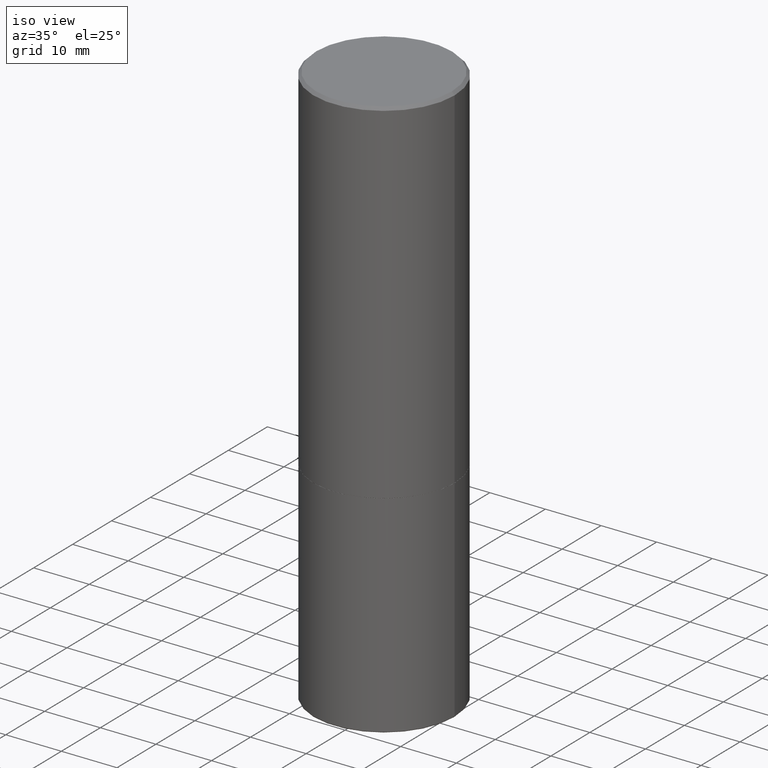
[diagram: clean part render]
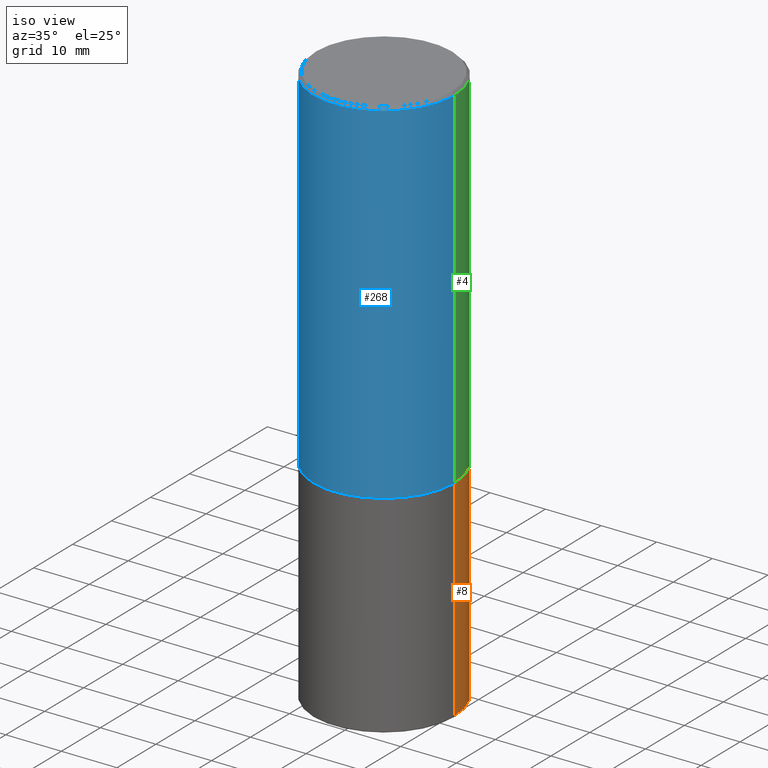
[diagram: same view with three faces highlighted in distinct colors, each labeled with its STEP entity id]
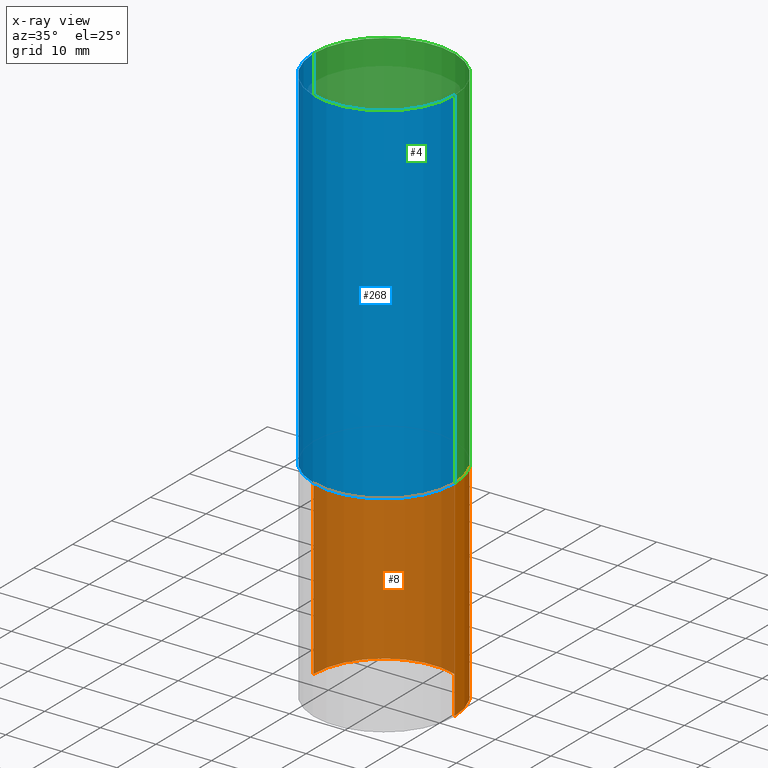
[diagram: x-ray of the same camera — body ghosted, the three highlighted faces saturated]
A machine part, iso view with three faces highlighted in distinct colors.
The next image is the same camera in x-ray (body ghosted, the three faces saturated) — at least one of them is partly hidden behind the body in this view.
Their STEP definitions:

[orange] entity #8 — the highlighted cylindrical surface (partial cylindrical patch) has radius 12.7 mm, axis along (-0, 0, 1).
#8 = ADVANCED_FACE ( 'NONE', ( #122 ), #247, .T. ) ;
#10 = VERTEX_POINT ( 'NONE', #80 ) ;
#18 = DIRECTION ( 'NONE',  ( -2.445468806185136597E-29, 3.491481338843145583E-15, 1.000000000000000000 ) ) ;
#43 = CIRCLE ( 'NONE', #415, 0.5000000000000000000 ) ;
#59 = DIRECTION ( 'NONE',  ( 1.000000000000000000, -6.982962677686269077E-15, 0.000000000000000000 ) ) ;
#74 = DIRECTION ( 'NONE',  ( 1.000000000000000000, -6.982962677686266711E-15, 0.000000000000000000 ) ) ;
#77 = CARTESIAN_POINT ( 'NONE',  ( -0.5000000000000000000, 3.552713678800500929E-15, -2.459467545127452891E-29 ) ) ;
#80 = CARTESIAN_POINT ( 'NONE',  ( 0.5000000000000000000, -1.742249188082728404E-14, -3.989999999999999769 ) ) ;
#90 = DIRECTION ( 'NONE',  ( -2.445468806185136597E-29, 3.491481338843145583E-15, 1.000000000000000000 ) ) ;
#91 = AXIS2_PLACEMENT_3D ( 'NONE', #182, #18, #59 ) ;
#109 = CARTESIAN_POINT ( 'NONE',  ( -0.5000000000000000000, -7.777143265745505305E-15, -2.500000000000000000 ) ) ;
#113 = CARTESIAN_POINT ( 'NONE',  ( 0.000000000000000000, 0.000000000000000000, 0.000000000000000000 ) ) ;
#114 = CARTESIAN_POINT ( 'NONE',  ( 0.5000000000000000000, -1.222018468595099830E-14, -2.500000000000000000 ) ) ;
#122 = FACE_OUTER_BOUND ( 'NONE', #358, .T. ) ;
#126 = CIRCLE ( 'NONE', #91, 0.5000000000000000000 ) ;
#149 = DIRECTION ( 'NONE',  ( 1.000000000000000000, -6.982962677686266711E-15, 4.876176775795935793E-29 ) ) ;
#150 = DIRECTION ( 'NONE',  ( -2.445468806185136877E-29, 3.491481338843145188E-15, 1.000000000000000000 ) ) ;
#157 = EDGE_CURVE ( 'NONE', #286, #319, #126, .T. ) ;
#158 = ORIENTED_EDGE ( 'NONE', *, *, #238, .F. ) ;
#166 = EDGE_CURVE ( 'NONE', #10, #355, #43, .T. ) ;
#172 = ORIENTED_EDGE ( 'NONE', *, *, #326, .T. ) ;
#181 = CARTESIAN_POINT ( 'NONE',  ( -0.5000000000000000000, -1.037829686318364817E-14, -3.989999999999999769 ) ) ;
#182 = CARTESIAN_POINT ( 'NONE',  ( 6.113672015462842613E-29, -8.728703347107864943E-15, -2.500000000000000000 ) ) ;
#238 = EDGE_CURVE ( 'NONE', #10, #286, #266, .T. ) ;
#241 = LINE ( 'NONE', #77, #293 ) ;
#247 = CYLINDRICAL_SURFACE ( 'NONE', #338, 0.5000000000000000000 ) ;
#266 = LINE ( 'NONE', #329, #351 ) ;
#286 = VERTEX_POINT ( 'NONE', #114 ) ;
#293 = VECTOR ( 'NONE', #363, 39.37007874015748143 ) ;
#319 = VERTEX_POINT ( 'NONE', #109 ) ;
#326 = EDGE_CURVE ( 'NONE', #355, #319, #241, .T. ) ;
#329 = CARTESIAN_POINT ( 'NONE',  ( 0.5000000000000000000, -3.491481338843133355E-15, 2.438088387897967896E-29 ) ) ;
#337 = DIRECTION ( 'NONE',  ( -2.445468806185136597E-29, 3.491481338843145583E-15, 1.000000000000000000 ) ) ;
#338 = AXIS2_PLACEMENT_3D ( 'NONE', #113, #90, #149 ) ;
#348 = ORIENTED_EDGE ( 'NONE', *, *, #166, .T. ) ;
#351 = VECTOR ( 'NONE', #150, 39.37007874015748143 ) ;
#355 = VERTEX_POINT ( 'NONE', #181 ) ;
#358 = EDGE_LOOP ( 'NONE', ( #348, #172, #418, #158 ) ) ;
#363 = DIRECTION ( 'NONE',  ( -2.445468806185136877E-29, 3.491481338843145188E-15, 1.000000000000000000 ) ) ;
#374 = CARTESIAN_POINT ( 'NONE',  ( 9.757420536678694842E-29, -1.393101054198414910E-14, -3.989999999999999769 ) ) ;
#415 = AXIS2_PLACEMENT_3D ( 'NONE', #374, #337, #74 ) ;
#418 = ORIENTED_EDGE ( 'NONE', *, *, #157, .F. ) ;

[blue] entity #268 — the highlighted cylindrical surface (partial cylindrical patch) has radius 12.7 mm, axis along (-0, 0, 1).
#24 = CARTESIAN_POINT ( 'NONE',  ( 0.5000000000000002220, -1.221669320461215845E-14, -2.499000000000000110 ) ) ;
#31 = CARTESIAN_POINT ( 'NONE',  ( 0.5000000000000001110, -3.500078625662629868E-15, -0.02000000000000010797 ) ) ;
#33 = DIRECTION ( 'NONE',  ( -2.445468806185136597E-29, 3.491481338843145583E-15, 1.000000000000000000 ) ) ;
#36 = AXIS2_PLACEMENT_3D ( 'NONE', #120, #141, #360 ) ;
#60 = FACE_OUTER_BOUND ( 'NONE', #197, .T. ) ;
#64 = CYLINDRICAL_SURFACE ( 'NONE', #209, 0.5000000000000001110 ) ;
#71 = EDGE_CURVE ( 'NONE', #100, #193, #395, .T. ) ;
#84 = DIRECTION ( 'NONE',  ( 1.000000000000000000, -6.982962677686265922E-15, 0.000000000000000000 ) ) ;
#100 = VERTEX_POINT ( 'NONE', #24 ) ;
#112 = CARTESIAN_POINT ( 'NONE',  ( -0.5000000000000002220, -8.448070674724393209E-16, -2.499000000000000110 ) ) ;
#120 = CARTESIAN_POINT ( 'NONE',  ( 6.111226546656657010E-29, -8.725211865769021935E-15, -2.499000000000000110 ) ) ;
#137 = DIRECTION ( 'NONE',  ( -2.445468806185136877E-29, 3.491481338843145188E-15, 1.000000000000000000 ) ) ;
#138 = EDGE_CURVE ( 'NONE', #297, #100, #231, .T. ) ;
#141 = DIRECTION ( 'NONE',  ( -2.445468806185136597E-29, 3.491481338843145583E-15, 1.000000000000000000 ) ) ;
#152 = CARTESIAN_POINT ( 'NONE',  ( 0.000000000000000000, 0.000000000000000000, 0.000000000000000000 ) ) ;
#156 = ORIENTED_EDGE ( 'NONE', *, *, #71, .T. ) ;
#165 = VECTOR ( 'NONE', #354, 39.37007874015748143 ) ;
#167 = CARTESIAN_POINT ( 'NONE',  ( -0.5000000000000001110, 3.552713678800501718E-15, -2.459467545127453732E-29 ) ) ;
#190 = DIRECTION ( 'NONE',  ( 1.000000000000000000, -6.982962677686267499E-15, 4.876176775795935793E-29 ) ) ;
#193 = VERTEX_POINT ( 'NONE', #31 ) ;
#197 = EDGE_LOOP ( 'NONE', ( #417, #260, #156, #330 ) ) ;
#202 = CARTESIAN_POINT ( 'NONE',  ( 0.5000000000000001110, -3.491481338843134539E-15, 2.438088387897968457E-29 ) ) ;
#204 = CARTESIAN_POINT ( 'NONE',  ( 4.890937612370299433E-31, -6.982962677686328587E-17, -0.02000000000000010797 ) ) ;
#209 = AXIS2_PLACEMENT_3D ( 'NONE', #152, #33, #190 ) ;
#219 = AXIS2_PLACEMENT_3D ( 'NONE', #204, #267, #84 ) ;
#231 = CIRCLE ( 'NONE', #36, 0.5000000000000002220 ) ;
#243 = CIRCLE ( 'NONE', #219, 0.5000000000000001110 ) ;
#260 = ORIENTED_EDGE ( 'NONE', *, *, #138, .T. ) ;
#267 = DIRECTION ( 'NONE',  ( -2.445468806185136597E-29, 3.491481338843145583E-15, 1.000000000000000000 ) ) ;
#268 = ADVANCED_FACE ( 'NONE', ( #60 ), #64, .T. ) ;
#284 = VERTEX_POINT ( 'NONE', #305 ) ;
#297 = VERTEX_POINT ( 'NONE', #112 ) ;
#305 = CARTESIAN_POINT ( 'NONE',  ( -0.5000000000000001110, 3.421651712066270452E-15, -0.02000000000000010797 ) ) ;
#325 = VECTOR ( 'NONE', #137, 39.37007874015748143 ) ;
#330 = ORIENTED_EDGE ( 'NONE', *, *, #401, .F. ) ;
#354 = DIRECTION ( 'NONE',  ( -2.445468806185136877E-29, 3.491481338843145188E-15, 1.000000000000000000 ) ) ;
#359 = LINE ( 'NONE', #167, #325 ) ;
#360 = DIRECTION ( 'NONE',  ( 1.000000000000000000, -6.982962677686269866E-15, 0.000000000000000000 ) ) ;
#395 = LINE ( 'NONE', #202, #165 ) ;
#401 = EDGE_CURVE ( 'NONE', #284, #193, #243, .T. ) ;
#413 = EDGE_CURVE ( 'NONE', #297, #284, #359, .T. ) ;
#417 = ORIENTED_EDGE ( 'NONE', *, *, #413, .F. ) ;

[green] entity #4 — the highlighted cylindrical surface (partial cylindrical patch) has radius 12.7 mm, axis along (-0, 0, 1).
#4 = ADVANCED_FACE ( 'NONE', ( #391 ), #227, .T. ) ;
#24 = CARTESIAN_POINT ( 'NONE',  ( 0.5000000000000002220, -1.221669320461215845E-14, -2.499000000000000110 ) ) ;
#31 = CARTESIAN_POINT ( 'NONE',  ( 0.5000000000000001110, -3.500078625662629868E-15, -0.02000000000000010797 ) ) ;
#34 = ORIENTED_EDGE ( 'NONE', *, *, #413, .T. ) ;
#71 = EDGE_CURVE ( 'NONE', #100, #193, #395, .T. ) ;
#79 = CIRCLE ( 'NONE', #102, 0.5000000000000001110 ) ;
#81 = DIRECTION ( 'NONE',  ( -2.445468806185136597E-29, 3.491481338843145583E-15, 1.000000000000000000 ) ) ;
#100 = VERTEX_POINT ( 'NONE', #24 ) ;
#102 = AXIS2_PLACEMENT_3D ( 'NONE', #179, #242, #275 ) ;
#103 = ORIENTED_EDGE ( 'NONE', *, *, #386, .T. ) ;
#108 = ORIENTED_EDGE ( 'NONE', *, *, #118, .F. ) ;
#112 = CARTESIAN_POINT ( 'NONE',  ( -0.5000000000000002220, -8.448070674724393209E-16, -2.499000000000000110 ) ) ;
#118 = EDGE_CURVE ( 'NONE', #193, #284, #79, .T. ) ;
#137 = DIRECTION ( 'NONE',  ( -2.445468806185136877E-29, 3.491481338843145188E-15, 1.000000000000000000 ) ) ;
#162 = ORIENTED_EDGE ( 'NONE', *, *, #71, .F. ) ;
#165 = VECTOR ( 'NONE', #354, 39.37007874015748143 ) ;
#167 = CARTESIAN_POINT ( 'NONE',  ( -0.5000000000000001110, 3.552713678800501718E-15, -2.459467545127453732E-29 ) ) ;
#179 = CARTESIAN_POINT ( 'NONE',  ( 4.890937612370299433E-31, -6.982962677686328587E-17, -0.02000000000000010797 ) ) ;
#183 = CIRCLE ( 'NONE', #339, 0.5000000000000002220 ) ;
#193 = VERTEX_POINT ( 'NONE', #31 ) ;
#199 = DIRECTION ( 'NONE',  ( -2.445468806185136597E-29, 3.491481338843145583E-15, 1.000000000000000000 ) ) ;
#202 = CARTESIAN_POINT ( 'NONE',  ( 0.5000000000000001110, -3.491481338843134539E-15, 2.438088387897968457E-29 ) ) ;
#211 = DIRECTION ( 'NONE',  ( 1.000000000000000000, -6.982962677686269866E-15, 0.000000000000000000 ) ) ;
#227 = CYLINDRICAL_SURFACE ( 'NONE', #414, 0.5000000000000001110 ) ;
#242 = DIRECTION ( 'NONE',  ( -2.445468806185136597E-29, 3.491481338843145583E-15, 1.000000000000000000 ) ) ;
#275 = DIRECTION ( 'NONE',  ( 1.000000000000000000, -6.982962677686265922E-15, 0.000000000000000000 ) ) ;
#284 = VERTEX_POINT ( 'NONE', #305 ) ;
#297 = VERTEX_POINT ( 'NONE', #112 ) ;
#305 = CARTESIAN_POINT ( 'NONE',  ( -0.5000000000000001110, 3.421651712066270452E-15, -0.02000000000000010797 ) ) ;
#324 = DIRECTION ( 'NONE',  ( 1.000000000000000000, -6.982962677686267499E-15, 4.876176775795935793E-29 ) ) ;
#325 = VECTOR ( 'NONE', #137, 39.37007874015748143 ) ;
#339 = AXIS2_PLACEMENT_3D ( 'NONE', #372, #81, #211 ) ;
#354 = DIRECTION ( 'NONE',  ( -2.445468806185136877E-29, 3.491481338843145188E-15, 1.000000000000000000 ) ) ;
#356 = CARTESIAN_POINT ( 'NONE',  ( 0.000000000000000000, 0.000000000000000000, 0.000000000000000000 ) ) ;
#359 = LINE ( 'NONE', #167, #325 ) ;
#372 = CARTESIAN_POINT ( 'NONE',  ( 6.111226546656657010E-29, -8.725211865769021935E-15, -2.499000000000000110 ) ) ;
#386 = EDGE_CURVE ( 'NONE', #100, #297, #183, .T. ) ;
#391 = FACE_OUTER_BOUND ( 'NONE', #399, .T. ) ;
#395 = LINE ( 'NONE', #202, #165 ) ;
#399 = EDGE_LOOP ( 'NONE', ( #103, #34, #108, #162 ) ) ;
#413 = EDGE_CURVE ( 'NONE', #297, #284, #359, .T. ) ;
#414 = AXIS2_PLACEMENT_3D ( 'NONE', #356, #199, #324 ) ;